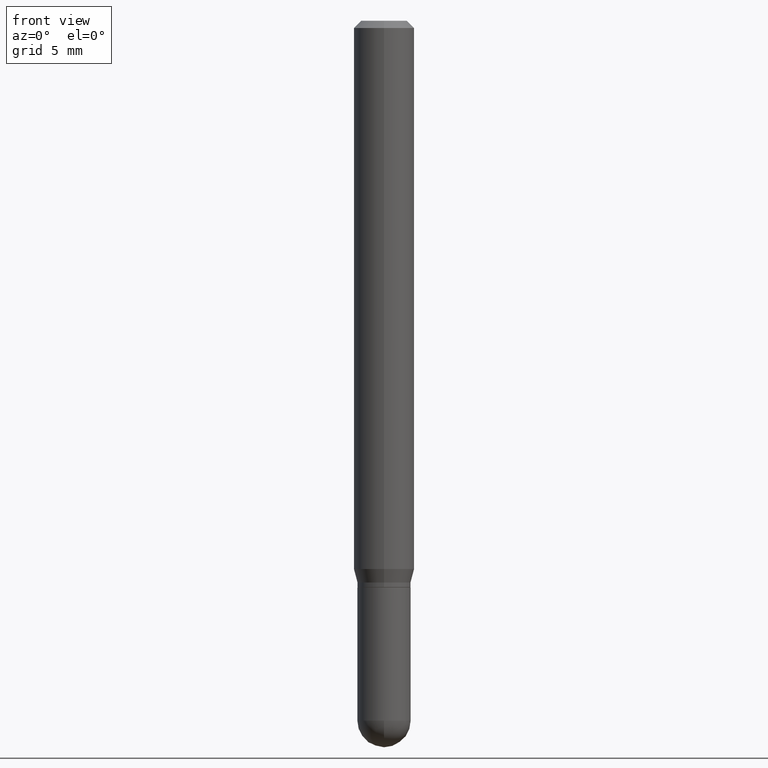
[diagram: clean part render]
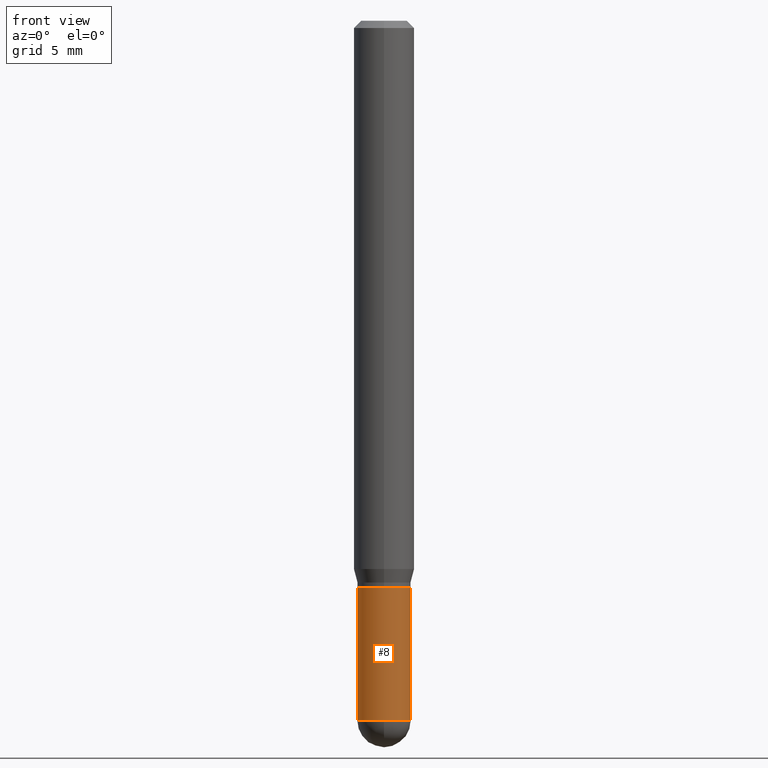
[diagram: same view with one face highlighted and labeled with its STEP entity id]
A machine part, front view. The second image highlights one B-rep face of the part: STEP entity #8.
In plain terms, the highlighted cylindrical surface (edge-blend (fillet) strip) has radius 1.397 mm, axis along (-0, 0, 1).
Its self-contained STEP definition (entity closure, byte-faithful):
#4 = VECTOR ( 'NONE', #181, 39.37007874015748143 ) ;
#8 = ADVANCED_FACE ( 'NONE', ( #408 ), #75, .T. ) ;
#25 = DIRECTION ( 'NONE',  ( 1.000000000000000000, -6.982962677686262766E-15, 0.000000000000000000 ) ) ;
#42 = EDGE_CURVE ( 'NONE', #124, #301, #361, .T. ) ;
#64 = DIRECTION ( 'NONE',  ( -2.445468806185136597E-29, 3.491481338843145583E-15, 1.000000000000000000 ) ) ;
#75 = CYLINDRICAL_SURFACE ( 'NONE', #336, 0.05500000000000000028 ) ;
#83 = CARTESIAN_POINT ( 'NONE',  ( 0.000000000000000000, 0.000000000000000000, 0.000000000000000000 ) ) ;
#85 = CARTESIAN_POINT ( 'NONE',  ( -3.840629472727099789E-16, -0.05500000000000514894, -1.444999999999999840 ) ) ;
#124 = VERTEX_POINT ( 'NONE', #350 ) ;
#125 = AXIS2_PLACEMENT_3D ( 'NONE', #347, #150, #309 ) ;
#133 = ORIENTED_EDGE ( 'NONE', *, *, #425, .T. ) ;
#144 = VECTOR ( 'NONE', #165, 39.37007874015748143 ) ;
#150 = DIRECTION ( 'NONE',  ( -2.445468806185136597E-29, 3.491481338843145583E-15, 1.000000000000000000 ) ) ;
#153 = CIRCLE ( 'NONE', #168, 0.05500000000000000028 ) ;
#163 = EDGE_CURVE ( 'NONE', #303, #423, #449, .T. ) ;
#165 = DIRECTION ( 'NONE',  ( -2.445468806185136877E-29, 3.491481338843145188E-15, 1.000000000000000000 ) ) ;
#168 = AXIS2_PLACEMENT_3D ( 'NONE', #424, #64, #25 ) ;
#181 = DIRECTION ( 'NONE',  ( -2.445468806185136877E-29, 3.491481338843145188E-15, 1.000000000000000000 ) ) ;
#185 = DIRECTION ( 'NONE',  ( 1.000000000000000000, -6.982962677686262766E-15, 0.000000000000000000 ) ) ;
#196 = CIRCLE ( 'NONE', #205, 0.05500000000000000028 ) ;
#201 = CARTESIAN_POINT ( 'NONE',  ( 0.05500000000000000028, -4.469096113719225052E-15, -1.170000000000000151 ) ) ;
#205 = AXIS2_PLACEMENT_3D ( 'NONE', #422, #257, #185 ) ;
#238 = ORIENTED_EDGE ( 'NONE', *, *, #42, .F. ) ;
#243 = EDGE_CURVE ( 'NONE', #301, #445, #153, .T. ) ;
#256 = EDGE_CURVE ( 'NONE', #423, #445, #462, .T. ) ;
#257 = DIRECTION ( 'NONE',  ( -2.445468806185136597E-29, 3.491481338843145583E-15, 1.000000000000000000 ) ) ;
#268 = ORIENTED_EDGE ( 'NONE', *, *, #256, .T. ) ;
#273 = DIRECTION ( 'NONE',  ( -2.445468806185136597E-29, 3.491481338843145583E-15, 1.000000000000000000 ) ) ;
#301 = VERTEX_POINT ( 'NONE', #451 ) ;
#303 = VERTEX_POINT ( 'NONE', #85 ) ;
#309 = DIRECTION ( 'NONE',  ( 1.000000000000000000, -6.982962677686262766E-15, 0.000000000000000000 ) ) ;
#336 = AXIS2_PLACEMENT_3D ( 'NONE', #83, #273, #508 ) ;
#342 = EDGE_LOOP ( 'NONE', ( #238, #133, #380, #268, #386 ) ) ;
#347 = CARTESIAN_POINT ( 'NONE',  ( 3.533702424937522517E-29, -5.045190534628345684E-15, -1.445000000000000062 ) ) ;
#350 = CARTESIAN_POINT ( 'NONE',  ( -0.05500000000000000028, -4.174313345869358610E-15, -1.445000000000000062 ) ) ;
#356 = CARTESIAN_POINT ( 'NONE',  ( -0.05500000000000000028, 3.907985046680551042E-16, -2.705414299640198362E-30 ) ) ;
#361 = LINE ( 'NONE', #356, #144 ) ;
#373 = CARTESIAN_POINT ( 'NONE',  ( 0.05500000000000000028, -4.949174797810157466E-15, -1.445000000000000062 ) ) ;
#380 = ORIENTED_EDGE ( 'NONE', *, *, #163, .T. ) ;
#386 = ORIENTED_EDGE ( 'NONE', *, *, #243, .F. ) ;
#408 = FACE_OUTER_BOUND ( 'NONE', #342, .T. ) ;
#422 = CARTESIAN_POINT ( 'NONE',  ( 3.533702424937522517E-29, -5.045190534628345684E-15, -1.445000000000000062 ) ) ;
#423 = VERTEX_POINT ( 'NONE', #373 ) ;
#424 = CARTESIAN_POINT ( 'NONE',  ( 2.861198503236610065E-29, -4.085033166446480067E-15, -1.170000000000000151 ) ) ;
#425 = EDGE_CURVE ( 'NONE', #124, #303, #196, .T. ) ;
#445 = VERTEX_POINT ( 'NONE', #201 ) ;
#449 = CIRCLE ( 'NONE', #125, 0.05500000000000000028 ) ;
#451 = CARTESIAN_POINT ( 'NONE',  ( -0.05500000000000000028, -4.174313345869358610E-15, -1.170000000000000151 ) ) ;
#454 = CARTESIAN_POINT ( 'NONE',  ( 0.05500000000000000028, -3.840629472727446888E-16, 2.681897226687764826E-30 ) ) ;
#462 = LINE ( 'NONE', #454, #4 ) ;
#508 = DIRECTION ( 'NONE',  ( 1.000000000000000000, -6.982962677686266711E-15, 4.876176775795935793E-29 ) ) ;